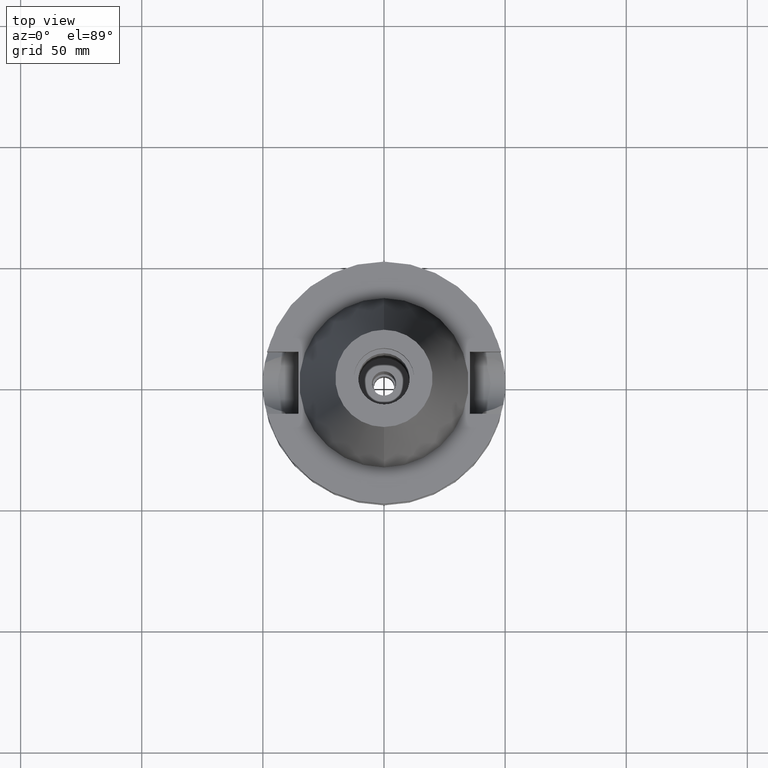
[diagram: clean part render]
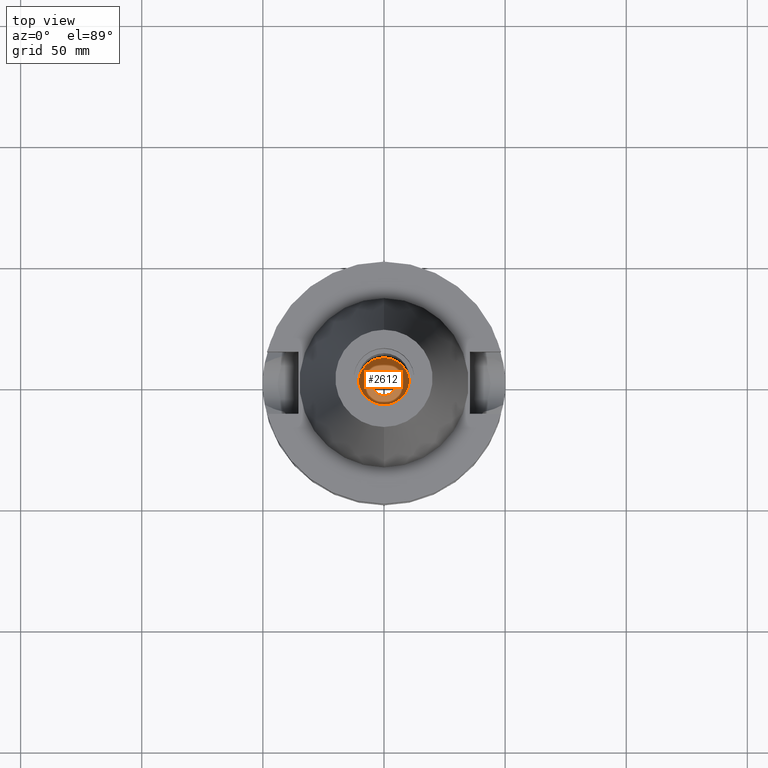
[diagram: same view with one face highlighted and labeled with its STEP entity id]
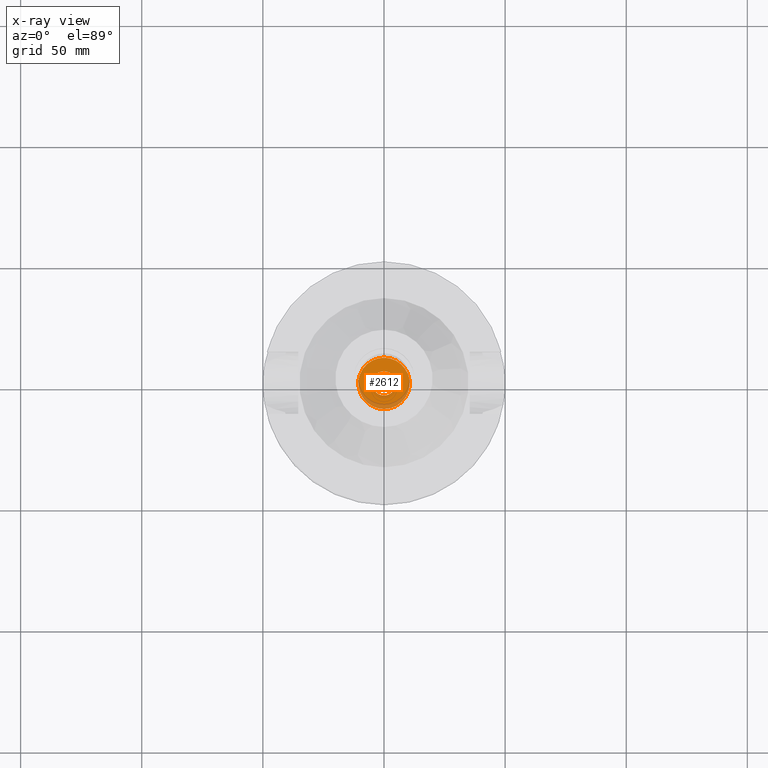
[diagram: x-ray of the same camera — body ghosted, the highlighted face saturated]
A machine part, top view. The second image highlights one B-rep face of the part: STEP entity #2612.
The next image is the same camera in x-ray: the body ghosted, the highlighted face saturated — about 14% of this face is hidden behind the body in this view.
In plain terms, the highlighted planar face has unit normal (0, 0, -1).
Its self-contained STEP definition (entity closure, byte-faithful):
#49 = DIRECTION ( 'NONE',  ( 0.0000000000000000000, 1.000000000000000000, 0.0000000000000000000 ) ) ;
#86 = ORIENTED_EDGE ( 'NONE', *, *, #1350, .F. ) ;
#97 = CARTESIAN_POINT ( 'NONE',  ( 0.0000000000000000000, 2.630602556908000006E-14, -18.19999999999999929 ) ) ;
#113 = CIRCLE ( 'NONE', #2902, 5.000000000000000000 ) ;
#154 = VERTEX_POINT ( 'NONE', #716 ) ;
#183 = DIRECTION ( 'NONE',  ( 0.0000000000000000000, 0.0000000000000000000, 1.000000000000000000 ) ) ;
#188 = DIRECTION ( 'NONE',  ( 0.0000000000000000000, 0.0000000000000000000, -1.000000000000000000 ) ) ;
#419 = DIRECTION ( 'NONE',  ( 0.0000000000000000000, -1.000000000000000000, 0.0000000000000000000 ) ) ;
#424 = DIRECTION ( 'NONE',  ( 0.0000000000000000000, -1.000000000000000000, 0.0000000000000000000 ) ) ;
#458 = CIRCLE ( 'NONE', #2315, 10.59999999999999964 ) ;
#472 = ORIENTED_EDGE ( 'NONE', *, *, #1036, .F. ) ;
#646 = CARTESIAN_POINT ( 'NONE',  ( 0.0000000000000000000, 2.630602556908000006E-14, -18.19999999999999929 ) ) ;
#716 = CARTESIAN_POINT ( 'NONE',  ( 0.0000000000000000000, 10.59999999999999964, -18.19999999999999929 ) ) ;
#757 = CARTESIAN_POINT ( 'NONE',  ( 0.0000000000000000000, 5.000000000000000000, -18.19999999999999929 ) ) ;
#788 = DIRECTION ( 'NONE',  ( 0.0000000000000000000, -1.000000000000000000, 0.0000000000000000000 ) ) ;
#864 = ORIENTED_EDGE ( 'NONE', *, *, #2417, .F. ) ;
#879 = AXIS2_PLACEMENT_3D ( 'NONE', #914, #188, #424 ) ;
#914 = CARTESIAN_POINT ( 'NONE',  ( 0.0000000000000000000, 1.001761081702999918E-14, -18.19999999999999929 ) ) ;
#922 = DIRECTION ( 'NONE',  ( 0.0000000000000000000, 0.0000000000000000000, -1.000000000000000000 ) ) ;
#1036 = EDGE_CURVE ( 'NONE', #1949, #2422, #113, .T. ) ;
#1067 = DIRECTION ( 'NONE',  ( 0.0000000000000000000, 0.0000000000000000000, -1.000000000000000000 ) ) ;
#1103 = CIRCLE ( 'NONE', #2708, 10.59999999999999964 ) ;
#1241 = AXIS2_PLACEMENT_3D ( 'NONE', #2720, #1538, #49 ) ;
#1338 = CARTESIAN_POINT ( 'NONE',  ( 0.0000000000000000000, -5.000000000000000000, -18.19999999999999929 ) ) ;
#1350 = EDGE_CURVE ( 'NONE', #1784, #154, #1103, .T. ) ;
#1398 = CARTESIAN_POINT ( 'NONE',  ( 0.0000000000000000000, 2.630602556908000006E-14, -18.19999999999999929 ) ) ;
#1406 = FACE_BOUND ( 'NONE', #3081, .T. ) ;
#1463 = CARTESIAN_POINT ( 'NONE',  ( 0.0000000000000000000, -10.59999999999999964, -18.19999999999999929 ) ) ;
#1538 = DIRECTION ( 'NONE',  ( 0.0000000000000000000, 0.0000000000000000000, 1.000000000000000000 ) ) ;
#1552 = EDGE_CURVE ( 'NONE', #154, #1784, #458, .T. ) ;
#1628 = PLANE ( 'NONE',  #879 ) ;
#1784 = VERTEX_POINT ( 'NONE', #1463 ) ;
#1909 = DIRECTION ( 'NONE',  ( 0.0000000000000000000, 1.000000000000000000, 0.0000000000000000000 ) ) ;
#1949 = VERTEX_POINT ( 'NONE', #1338 ) ;
#2104 = FACE_OUTER_BOUND ( 'NONE', #2684, .T. ) ;
#2315 = AXIS2_PLACEMENT_3D ( 'NONE', #1398, #922, #1909 ) ;
#2417 = EDGE_CURVE ( 'NONE', #2422, #1949, #2429, .T. ) ;
#2422 = VERTEX_POINT ( 'NONE', #757 ) ;
#2429 = CIRCLE ( 'NONE', #1241, 5.000000000000000000 ) ;
#2612 = ADVANCED_FACE ( 'NONE', ( #2104, #1406 ), #1628, .F. ) ;
#2684 = EDGE_LOOP ( 'NONE', ( #2923, #86 ) ) ;
#2708 = AXIS2_PLACEMENT_3D ( 'NONE', #97, #1067, #788 ) ;
#2720 = CARTESIAN_POINT ( 'NONE',  ( 0.0000000000000000000, 2.630602556908000006E-14, -18.19999999999999929 ) ) ;
#2902 = AXIS2_PLACEMENT_3D ( 'NONE', #646, #183, #419 ) ;
#2923 = ORIENTED_EDGE ( 'NONE', *, *, #1552, .F. ) ;
#3081 = EDGE_LOOP ( 'NONE', ( #864, #472 ) ) ;